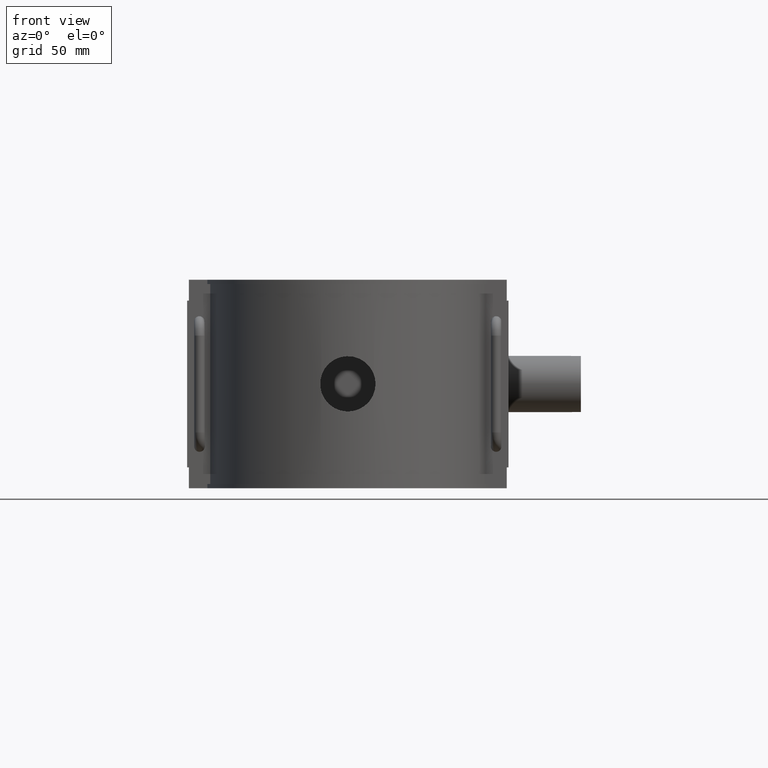
[diagram: clean part render]
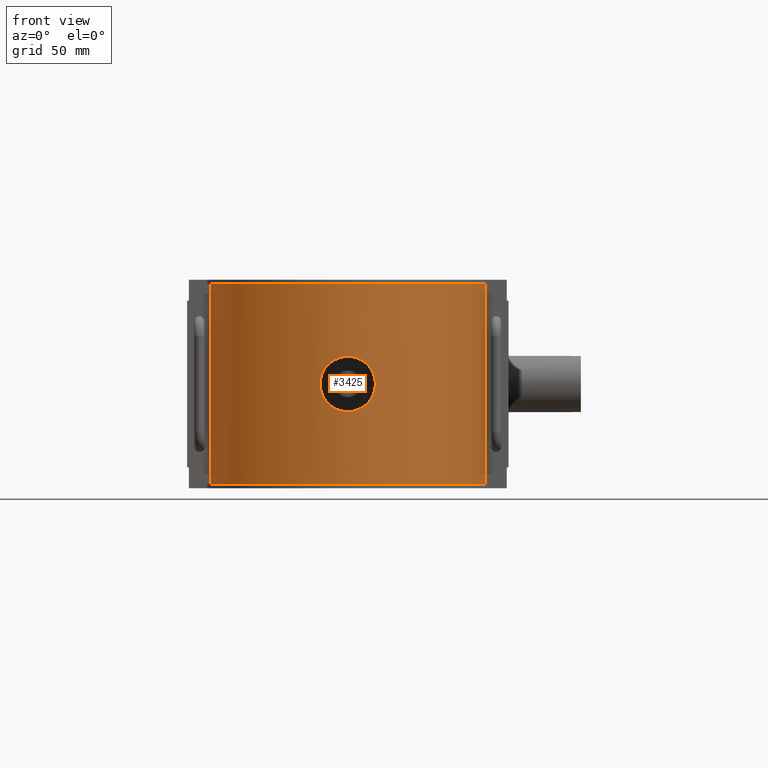
[diagram: same view with one face highlighted and labeled with its STEP entity id]
A machine part, front view. The second image highlights one B-rep face of the part: STEP entity #3425.
In plain terms, the highlighted cylindrical surface (partial cylindrical patch) has radius 79.8 mm, axis along (0, 0, 1).
Its self-contained STEP definition (entity closure, byte-faithful):
#117=LINE('',#6114,#404);
#152=LINE('',#6374,#439);
#404=VECTOR('',#4150,113.28);
#439=VECTOR('',#4227,113.28);
#650=FACE_BOUND('',#1137,.T.);
#731=B_SPLINE_CURVE_WITH_KNOTS('',3,(#5708,#5709,#5710,#5711,#5712,#5713,
#5714,#5715,#5716,#5717,#5718,#5719,#5720,#5721,#5722,#5723,#5724,#5725,
#5726,#5727,#5728,#5729,#5730,#5731,#5732,#5733,#5734,#5735,#5736,#5737,
#5738,#5739,#5740,#5741,#5742,#5743,#5744,#5745,#5746,#5747,#5748,#5749,
#5750,#5751,#5752,#5753,#5754,#5755,#5756,#5757,#5758,#5759,#5760,#5761,
#5762,#5763,#5764,#5765,#5766,#5767,#5768,#5769,#5770,#5771,#5772,#5773),
 .UNSPECIFIED.,.T.,.F.,(4,2,2,2,2,2,2,2,2,2,2,2,2,2,2,2,2,2,2,2,2,2,2,2,
2,2,2,2,2,2,2,2,4),(0.,0.296160389258301,0.592320778516602,0.888481167774903,
1.1846415570332,1.48078650597248,1.77693145491175,2.07307640385102,2.36922135279029,
2.66536630172956,2.96151125066883,3.2576561996081,3.55380114854738,3.84996153780568,
4.14612192706398,4.44228231632228,4.73844270558058,5.03460309483888,5.33076348409718,
5.62692387335548,5.92308426261378,6.21922921155306,6.51537416049233,6.8115191094316,
7.10766405837087,7.40380900731014,7.69995395624941,7.99609890518868,8.29224385412796,
8.58840424338626,8.88456463264456,9.18072502190286,9.47688541116116),
 .UNSPECIFIED.);
#796=CYLINDRICAL_SURFACE('',#3680,79.8);
#909=FACE_OUTER_BOUND('',#1136,.T.);
#1136=EDGE_LOOP('',(#2629,#2630,#2631,#2632));
#1137=EDGE_LOOP('',(#2633));
#1341=CIRCLE('',#3656,79.8);
#1349=CIRCLE('',#3670,79.8);
#1502=VERTEX_POINT('',#5707);
#1517=VERTEX_POINT('',#6099);
#1518=VERTEX_POINT('',#6101);
#1522=VERTEX_POINT('',#6113);
#1543=VERTEX_POINT('',#6184);
#1883=EDGE_CURVE('',#1502,#1502,#731,.T.);
#1902=EDGE_CURVE('',#1517,#1518,#1341,.T.);
#1907=EDGE_CURVE('',#1517,#1522,#117,.T.);
#1931=EDGE_CURVE('',#1543,#1522,#1349,.T.);
#1966=EDGE_CURVE('',#1518,#1543,#152,.T.);
#2629=ORIENTED_EDGE('',*,*,#1902,.T.);
#2630=ORIENTED_EDGE('',*,*,#1966,.T.);
#2631=ORIENTED_EDGE('',*,*,#1931,.T.);
#2632=ORIENTED_EDGE('',*,*,#1907,.F.);
#2633=ORIENTED_EDGE('',*,*,#1883,.T.);
#3425=ADVANCED_FACE('',(#909,#650),#796,.T.);
#3656=AXIS2_PLACEMENT_3D('',#6103,#4140,#4141);
#3670=AXIS2_PLACEMENT_3D('',#6185,#4187,#4188);
#3680=AXIS2_PLACEMENT_3D('',#6375,#4228,#4229);
#4140=DIRECTION('center_axis',(0.,0.,1.));
#4141=DIRECTION('ref_axis',(1.,0.,0.));
#4150=DIRECTION('',(0.,0.,1.));
#4187=DIRECTION('center_axis',(0.,0.,-1.));
#4188=DIRECTION('ref_axis',(1.,0.,0.));
#4227=DIRECTION('',(0.,0.,1.));
#4228=DIRECTION('center_axis',(0.,0.,1.));
#4229=DIRECTION('ref_axis',(1.,0.,0.));
#5707=CARTESIAN_POINT('',(15.68,-78.244345482597,2.77555756156289E-16));
#5708=CARTESIAN_POINT('Ctrl Pts',(15.68,-78.244345482597,2.77555756156289E-16));
#5709=CARTESIAN_POINT('Ctrl Pts',(15.68,-78.244345482597,-0.98720129752767));
#5710=CARTESIAN_POINT('Ctrl Pts',(15.5852670258171,-78.2635330153093,-2.0072735228596));
#5711=CARTESIAN_POINT('Ctrl Pts',(15.1871786844354,-78.3417561195393,-4.03476131728822));
#5712=CARTESIAN_POINT('Ctrl Pts',(14.8839178314738,-78.4007321999089,-5.04219773749511));
#5713=CARTESIAN_POINT('Ctrl Pts',(14.0830320861092,-78.5485456336392,-6.97301813539892));
#5714=CARTESIAN_POINT('Ctrl Pts',(13.5847703214263,-78.6373570579926,-7.89798904768564));
#5715=CARTESIAN_POINT('Ctrl Pts',(12.4343344189502,-78.8274523074948,-9.60788963661112));
#5716=CARTESIAN_POINT('Ctrl Pts',(11.7820810057343,-78.9285410961755,-10.3927876522758));
#5717=CARTESIAN_POINT('Ctrl Pts',(10.3928238676736,-79.1234553918684,-11.7820447903365));
#5718=CARTESIAN_POINT('Ctrl Pts',(9.60794265108503,-79.2241584895739,-12.4342941973184));
#5719=CARTESIAN_POINT('Ctrl Pts',(7.89803139926002,-79.412851292345,-13.5847463797022));
#5720=CARTESIAN_POINT('Ctrl Pts',(6.97303304497154,-79.5006552886048,-14.0830266925714));
#5721=CARTESIAN_POINT('Ctrl Pts',(5.04215919859568,-79.6464312551021,-14.8839330262207));
#5722=CARTESIAN_POINT('Ctrl Pts',(4.03469755807736,-79.7043936934068,-15.1871957960142));
#5723=CARTESIAN_POINT('Ctrl Pts',(2.00720303008282,-79.7812026383083,-15.5852762737236));
#5724=CARTESIAN_POINT('Ctrl Pts',(0.987149829797573,-79.8,-15.68));
#5725=CARTESIAN_POINT('Ctrl Pts',(-0.987149829797571,-79.8,-15.68));
#5726=CARTESIAN_POINT('Ctrl Pts',(-2.00720303008282,-79.7812026383083,-15.5852762737236));
#5727=CARTESIAN_POINT('Ctrl Pts',(-4.03469755807735,-79.7043936934068,-15.1871957960142));
#5728=CARTESIAN_POINT('Ctrl Pts',(-5.04215919859568,-79.6464312551021,-14.8839330262207));
#5729=CARTESIAN_POINT('Ctrl Pts',(-6.97303304497154,-79.5006552886048,-14.0830266925714));
#5730=CARTESIAN_POINT('Ctrl Pts',(-7.89803139926001,-79.412851292345,-13.5847463797022));
#5731=CARTESIAN_POINT('Ctrl Pts',(-9.60794265108502,-79.2241584895739,-12.4342941973184));
#5732=CARTESIAN_POINT('Ctrl Pts',(-10.3928238676736,-79.1234553918684,-11.7820447903365));
#5733=CARTESIAN_POINT('Ctrl Pts',(-11.7820810057343,-78.9285410961755,-10.3927876522759));
#5734=CARTESIAN_POINT('Ctrl Pts',(-12.4343344189502,-78.8274523074948,-9.60788963661113));
#5735=CARTESIAN_POINT('Ctrl Pts',(-13.5847703214263,-78.6373570579926,-7.89798904768564));
#5736=CARTESIAN_POINT('Ctrl Pts',(-14.0830320861092,-78.5485456336392,-6.97301813539893));
#5737=CARTESIAN_POINT('Ctrl Pts',(-14.8839178314738,-78.4007321999089,-5.04219773749512));
#5738=CARTESIAN_POINT('Ctrl Pts',(-15.1871786844354,-78.3417561195393,-4.03476131728823));
#5739=CARTESIAN_POINT('Ctrl Pts',(-15.5852670258171,-78.2635330153093,-2.00727352285961));
#5740=CARTESIAN_POINT('Ctrl Pts',(-15.68,-78.244345482597,-0.987201297527672));
#5741=CARTESIAN_POINT('Ctrl Pts',(-15.68,-78.244345482597,0.987201297527672));
#5742=CARTESIAN_POINT('Ctrl Pts',(-15.5852670258171,-78.2635330153093,2.00727352285961));
#5743=CARTESIAN_POINT('Ctrl Pts',(-15.1871786844354,-78.3417561195393,4.03476131728823));
#5744=CARTESIAN_POINT('Ctrl Pts',(-14.8839178314738,-78.4007321999089,5.04219773749512));
#5745=CARTESIAN_POINT('Ctrl Pts',(-14.0830320861092,-78.5485456336392,6.97301813539893));
#5746=CARTESIAN_POINT('Ctrl Pts',(-13.5847703214263,-78.6373570579926,7.89798904768565));
#5747=CARTESIAN_POINT('Ctrl Pts',(-12.4343344189502,-78.8274523074948,9.60788963661112));
#5748=CARTESIAN_POINT('Ctrl Pts',(-11.7820810057343,-78.9285410961755,10.3927876522758));
#5749=CARTESIAN_POINT('Ctrl Pts',(-10.3928238676736,-79.1234553918684,11.7820447903365));
#5750=CARTESIAN_POINT('Ctrl Pts',(-9.60794265108503,-79.2241584895739,12.4342941973184));
#5751=CARTESIAN_POINT('Ctrl Pts',(-7.89803139926001,-79.412851292345,13.5847463797022));
#5752=CARTESIAN_POINT('Ctrl Pts',(-6.97303304497154,-79.5006552886048,14.0830266925714));
#5753=CARTESIAN_POINT('Ctrl Pts',(-5.04215919859568,-79.6464312551021,14.8839330262207));
#5754=CARTESIAN_POINT('Ctrl Pts',(-4.03469755807736,-79.7043936934068,15.1871957960142));
#5755=CARTESIAN_POINT('Ctrl Pts',(-2.00720303008283,-79.7812026383083,15.5852762737236));
#5756=CARTESIAN_POINT('Ctrl Pts',(-0.987149829797576,-79.8,15.68));
#5757=CARTESIAN_POINT('Ctrl Pts',(0.987149829797571,-79.8,15.68));
#5758=CARTESIAN_POINT('Ctrl Pts',(2.00720303008282,-79.7812026383083,15.5852762737236));
#5759=CARTESIAN_POINT('Ctrl Pts',(4.03469755807736,-79.7043936934068,15.1871957960142));
#5760=CARTESIAN_POINT('Ctrl Pts',(5.04215919859568,-79.6464312551021,14.8839330262207));
#5761=CARTESIAN_POINT('Ctrl Pts',(6.97303304497154,-79.5006552886048,14.0830266925714));
#5762=CARTESIAN_POINT('Ctrl Pts',(7.89803139926001,-79.412851292345,13.5847463797022));
#5763=CARTESIAN_POINT('Ctrl Pts',(9.60794265108502,-79.2241584895739,12.4342941973184));
#5764=CARTESIAN_POINT('Ctrl Pts',(10.3928238676736,-79.1234553918684,11.7820447903365));
#5765=CARTESIAN_POINT('Ctrl Pts',(11.7820810057343,-78.9285410961755,10.3927876522759));
#5766=CARTESIAN_POINT('Ctrl Pts',(12.4343344189502,-78.8274523074948,9.60788963661113));
#5767=CARTESIAN_POINT('Ctrl Pts',(13.5847703214263,-78.6373570579926,7.89798904768565));
#5768=CARTESIAN_POINT('Ctrl Pts',(14.0830320861092,-78.5485456336392,6.97301813539893));
#5769=CARTESIAN_POINT('Ctrl Pts',(14.8839178314738,-78.4007321999089,5.04219773749513));
#5770=CARTESIAN_POINT('Ctrl Pts',(15.1871786844354,-78.3417561195393,4.03476131728824));
#5771=CARTESIAN_POINT('Ctrl Pts',(15.5852670258171,-78.2635330153093,2.00727352285961));
#5772=CARTESIAN_POINT('Ctrl Pts',(15.68,-78.244345482597,0.987201297527676));
#5773=CARTESIAN_POINT('Ctrl Pts',(15.68,-78.244345482597,5.55111512312578E-16));
#6099=CARTESIAN_POINT('',(-77.8574980332659,-17.5,-56.64));
#6101=CARTESIAN_POINT('',(77.8574980332659,-17.5,-56.64));
#6103=CARTESIAN_POINT('Origin',(0.,0.,-56.64));
#6113=CARTESIAN_POINT('',(-77.8574980332659,-17.5,56.64));
#6114=CARTESIAN_POINT('',(-77.8574980332659,-17.5,0.));
#6184=CARTESIAN_POINT('',(77.8574980332659,-17.5,56.64));
#6185=CARTESIAN_POINT('Origin',(0.,0.,56.64));
#6374=CARTESIAN_POINT('',(77.8574980332659,-17.5,0.));
#6375=CARTESIAN_POINT('Origin',(0.,0.,0.));